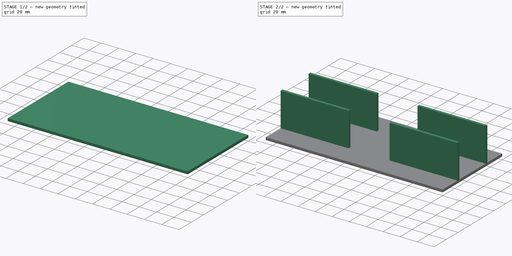
[diagram: build sequence overview — one tinted view per stage of 2, left to right]
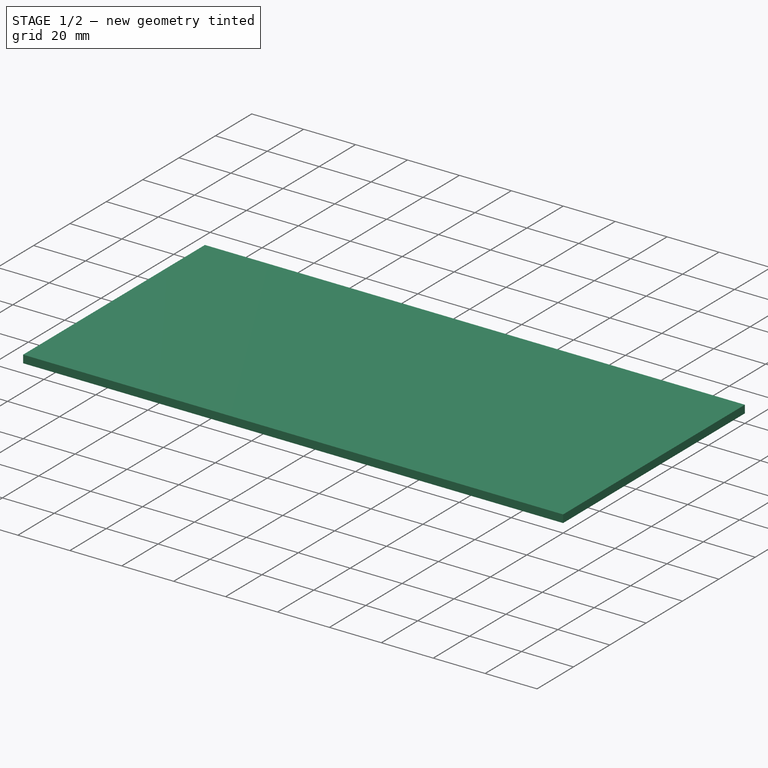
[diagram: stage 1 of 2 — iso view after this stage's code; geometry added in this stage tinted green]
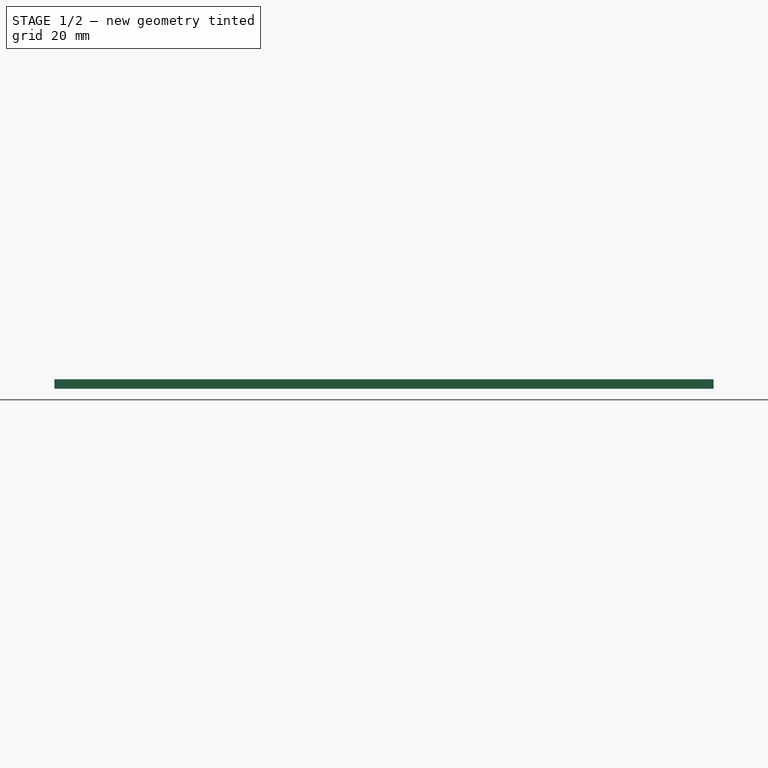
[diagram: stage 1 of 2 — front view after this stage's code; geometry added in this stage tinted green]
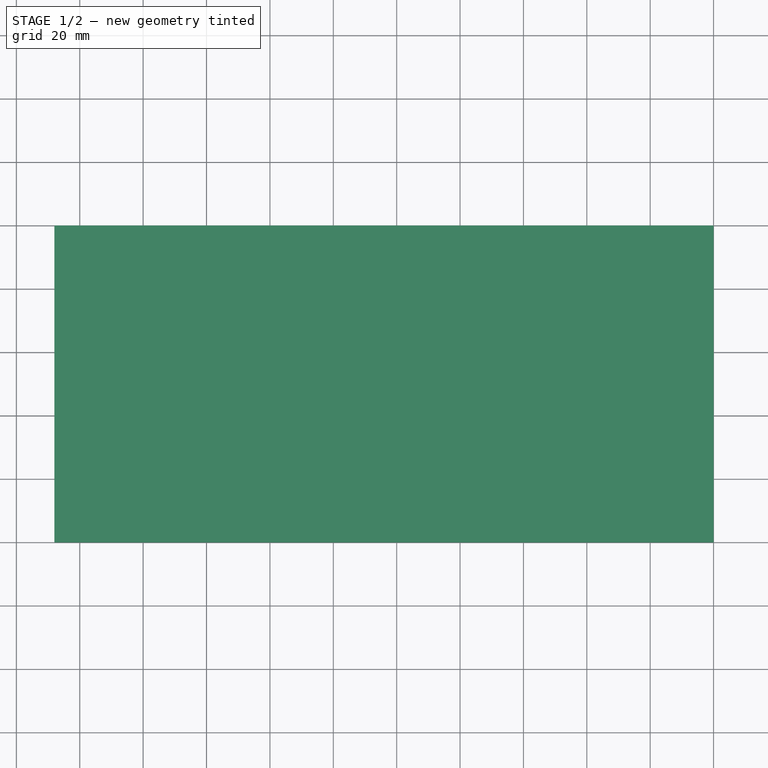
[diagram: stage 1 of 2 — top view after this stage's code; geometry added in this stage tinted green]
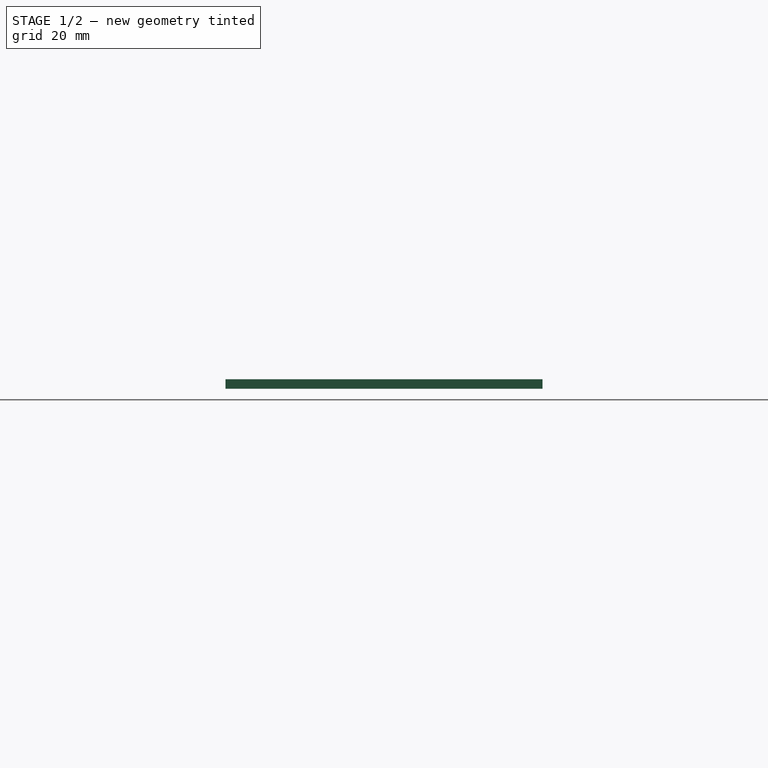
[diagram: stage 1 of 2 — right view after this stage's code; geometry added in this stage tinted green]
FCSTD DOCUMENT  (FreeCAD 0.16R6706 (Git))
Label: Cache Moteur
License: All rights reserved
LicenseURL: http://en.wikipedia.org/wiki/All_rights_reserved
objects: Sketcher::SketchObject×2, PartDesign::Pad×2
note: 6 computed .brp shape members not serialized (recipe doc carries the construction recipe); baked Part::Feature solids carry a one-line shape summary decoded from their .brp

FEATURE [Sketcher::SketchObject] Sketch
  sketch-geometry (4):
    g0: LineSegment StartX=0 StartY=0 StartZ=0 EndX=-208 EndY=0 EndZ=0
    g1: LineSegment StartX=-208 StartY=0 StartZ=0 EndX=-208 EndY=100 EndZ=0
    g2: LineSegment StartX=-208 StartY=100 StartZ=0 EndX=0 EndY=100 EndZ=0
    g3: LineSegment StartX=0 StartY=100 StartZ=0 EndX=0 EndY=0 EndZ=0
  constraints (11):
    c: Coincident(g0,g1)
    c: Coincident(g1,g2)
    c: Coincident(g2,g3)
    c: Coincident(g3,g0)
    c: Horizontal(g0)
    c: Horizontal(g2)
    c: Vertical(g1)
    c: Vertical(g3)
    c: Coincident(g0,g-1)
    c: DistanceX(g2,g2) = 208
    c: DistanceY(g3,g3) = 100
FEATURE [PartDesign::Pad] Pad
  Length = 3
  Length2 = 100
  Sketch = -> Sketch
  Type = 0
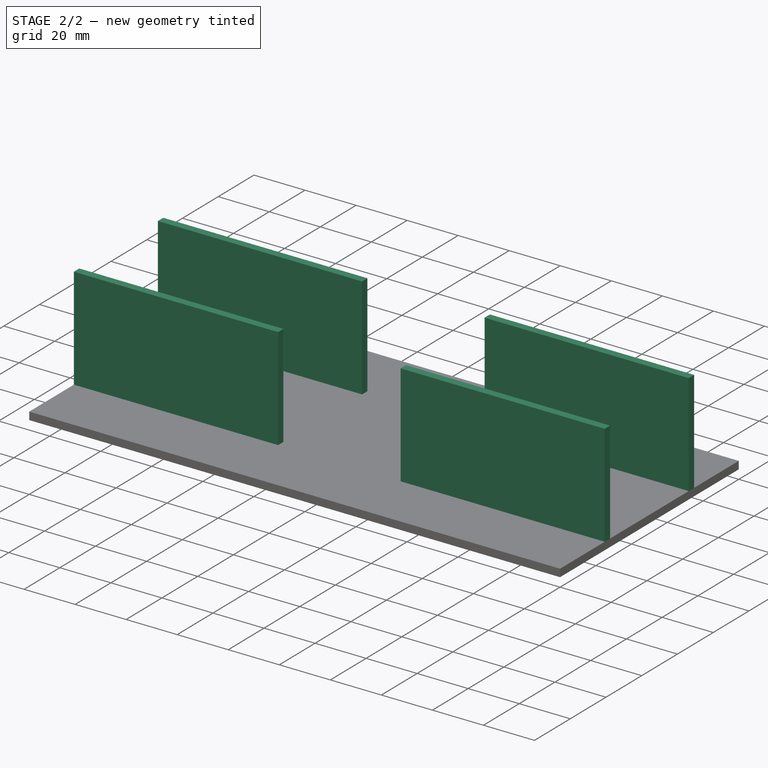
[diagram: stage 2 of 2 — iso view after this stage's code; geometry added in this stage tinted green]
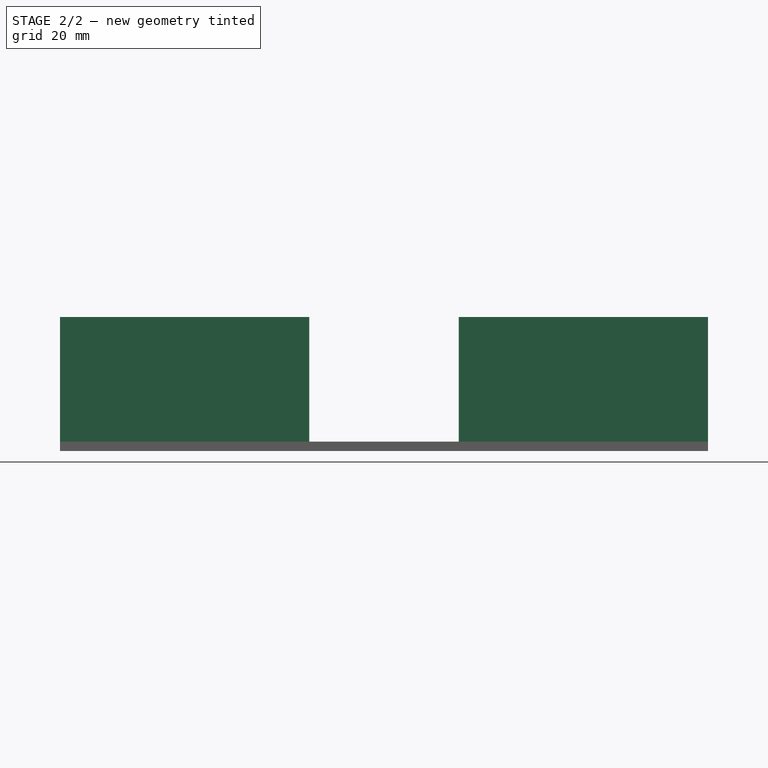
[diagram: stage 2 of 2 — front view after this stage's code; geometry added in this stage tinted green]
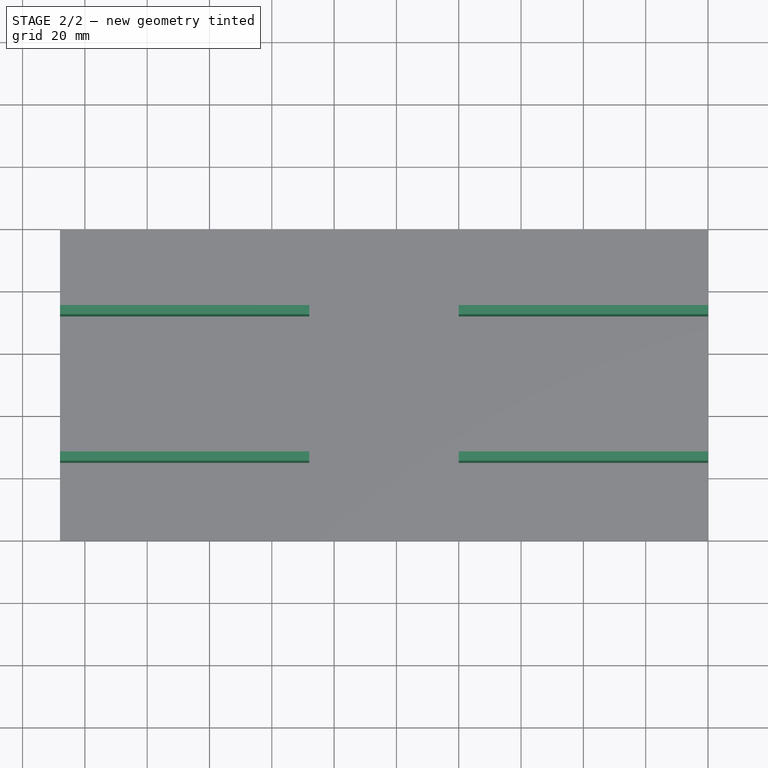
[diagram: stage 2 of 2 — top view after this stage's code; geometry added in this stage tinted green]
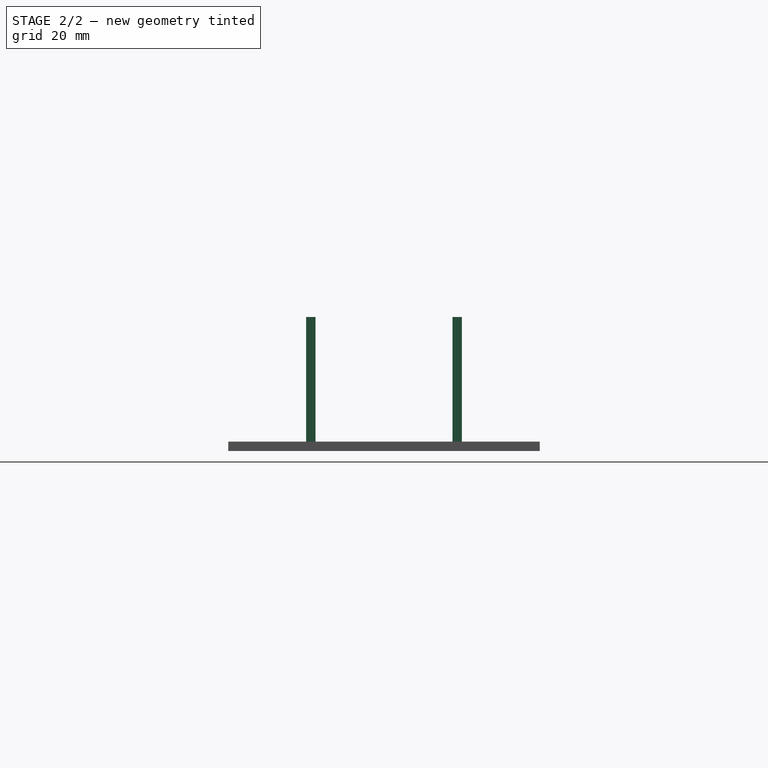
[diagram: stage 2 of 2 — right view after this stage's code; geometry added in this stage tinted green]
FEATURE [Sketcher::SketchObject] Sketch001
  ExternalGeometry = -> [Pad]
  Placement = pos=(0,0,3) rot=(0,0,1;0rad)
  Support = -> Pad [Face6]
  sketch-geometry (16):
    g0: LineSegment StartX=-208 StartY=75 StartZ=0 EndX=-128 EndY=75 EndZ=0
    g1: LineSegment StartX=-128 StartY=75 StartZ=0 EndX=-128 EndY=72 EndZ=0
    g2: LineSegment StartX=-128 StartY=72 StartZ=0 EndX=-208 EndY=72 EndZ=0
    g3: LineSegment StartX=-208 StartY=72 StartZ=0 EndX=-208 EndY=75 EndZ=0
    g4: LineSegment StartX=-80 StartY=75 StartZ=0 EndX=0 EndY=75 EndZ=0
    g5: LineSegment StartX=0 StartY=75 StartZ=0 EndX=0 EndY=72 EndZ=0
    g6: LineSegment StartX=0 StartY=72 StartZ=0 EndX=-80 EndY=72 EndZ=0
    g7: LineSegment StartX=-80 StartY=72 StartZ=0 EndX=-80 EndY=75 EndZ=0
    g8: LineSegment StartX=-208 StartY=28 StartZ=0 EndX=-128 EndY=28 EndZ=0
    g9: LineSegment StartX=-128 StartY=28 StartZ=0 EndX=-128 EndY=25 EndZ=0
    g10: LineSegment StartX=-128 StartY=25 StartZ=0 EndX=-208 EndY=25 EndZ=0
    g11: LineSegment StartX=-208 StartY=25 StartZ=0 EndX=-208 EndY=28 EndZ=0
    g12: LineSegment StartX=-80 StartY=28 StartZ=0 EndX=0 EndY=28 EndZ=0
    g13: LineSegment StartX=0 StartY=28 StartZ=0 EndX=0 EndY=25 EndZ=0
    g14: LineSegment StartX=0 StartY=25 StartZ=0 EndX=-80 EndY=25 EndZ=0
    g15: LineSegment StartX=-80 StartY=25 StartZ=0 EndX=-80 EndY=28 EndZ=0
  constraints (48):
    c: Coincident(g0,g1)
    c: Coincident(g1,g2)
    c: Coincident(g2,g3)
    c: Coincident(g3,g0)
    c: Horizontal(g0)
    c: Horizontal(g2)
    c: Vertical(g1)
    c: Vertical(g3)
    c: PointOnObject(g0,g-4)
    c: Coincident(g4,g5)
    c: Coincident(g5,g6)
    c: Coincident(g6,g7)
    c: Coincident(g7,g4)
    c: Horizontal(g4)
    c: Horizontal(g6)
    c: Vertical(g5)
    c: Vertical(g7)
    c: PointOnObject(g5,g-6)
    c: Coincident(g8,g9)
    c: Coincident(g9,g10)
    c: Coincident(g10,g11)
    c: Coincident(g11,g8)
    c: Horizontal(g8)
    c: Horizontal(g10)
    c: Vertical(g9)
    c: Vertical(g11)
    c: PointOnObject(g8,g-4)
    c: Coincident(g12,g13)
    c: Coincident(g13,g14)
    c: Coincident(g14,g15)
    c: Coincident(g15,g12)
    c: Horizontal(g12)
    c: Horizontal(g14)
    c: Vertical(g13)
    c: Vertical(g15)
    c: PointOnObject(g13,g-6)
    c: DistanceY(g1,g1) = 3
    c: Equal(g1,g7)
    c: Equal(g7,g15)
    c: Equal(g15,g9)
    c: DistanceX(g0,g0) = 80
    c: Equal(g0,g4)
    c: Equal(g4,g8)
    c: Equal(g8,g12)
    c: DistanceY(g0,g-4) = 25
    c: DistanceY(g-5,g10) = 25
    c: DistanceY(g4,g-6) = 25
    c: DistanceY(g-1,g13) = 25
FEATURE [PartDesign::Pad] Pad001
  Length = 40
  Length2 = 100
  Sketch = -> Sketch001
  Type = 0
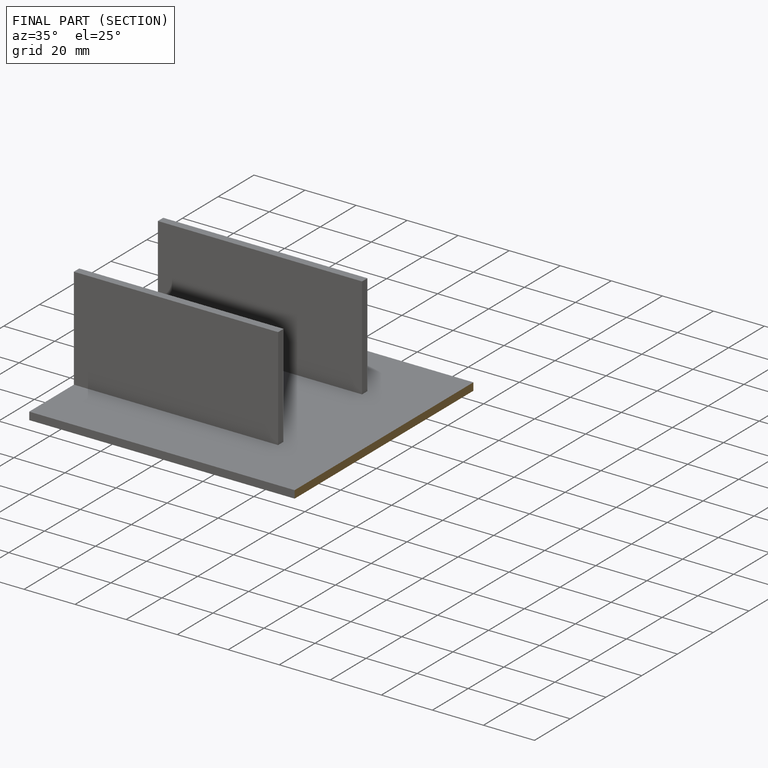
[diagram: finished part — half-section view (interior)]
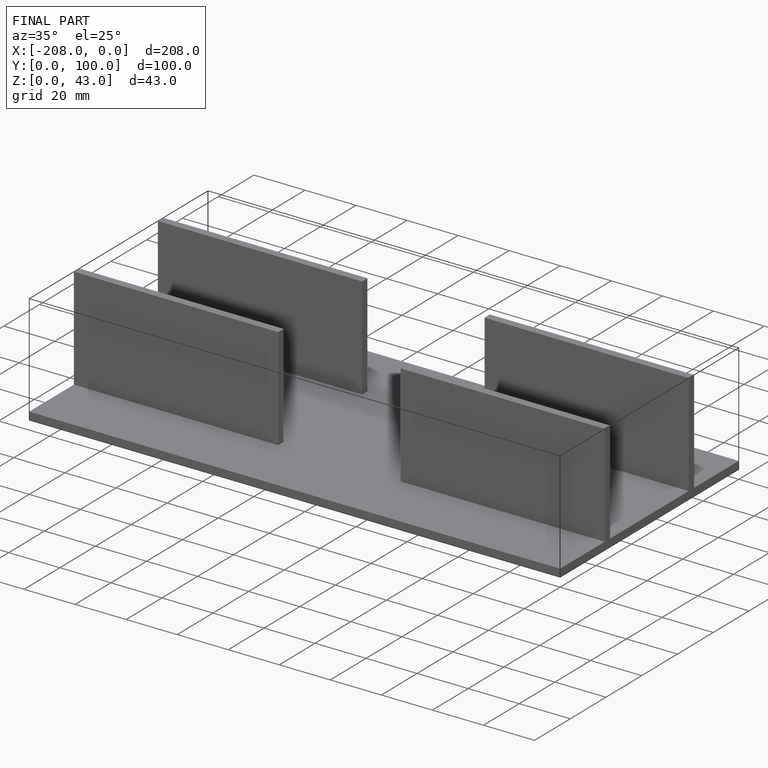
[diagram: finished part — iso view with bounding-box wireframe]
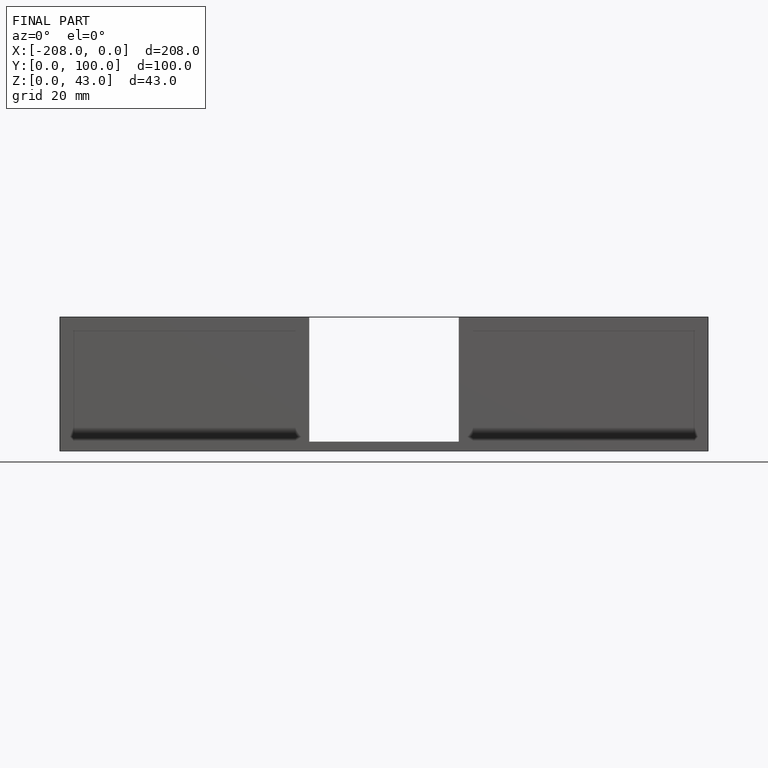
[diagram: finished part — front view with bounding-box wireframe]
